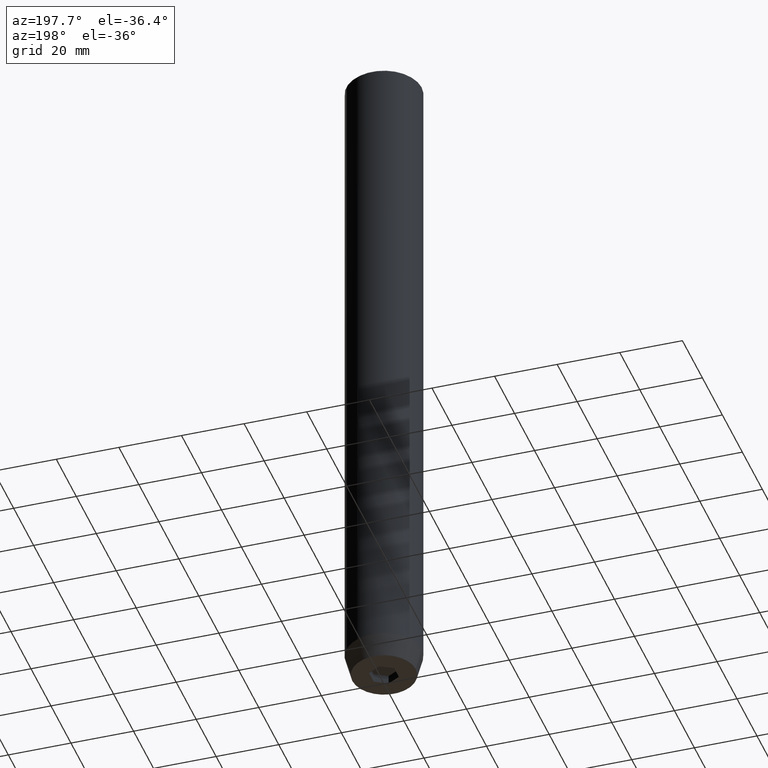
[diagram: clean part render]
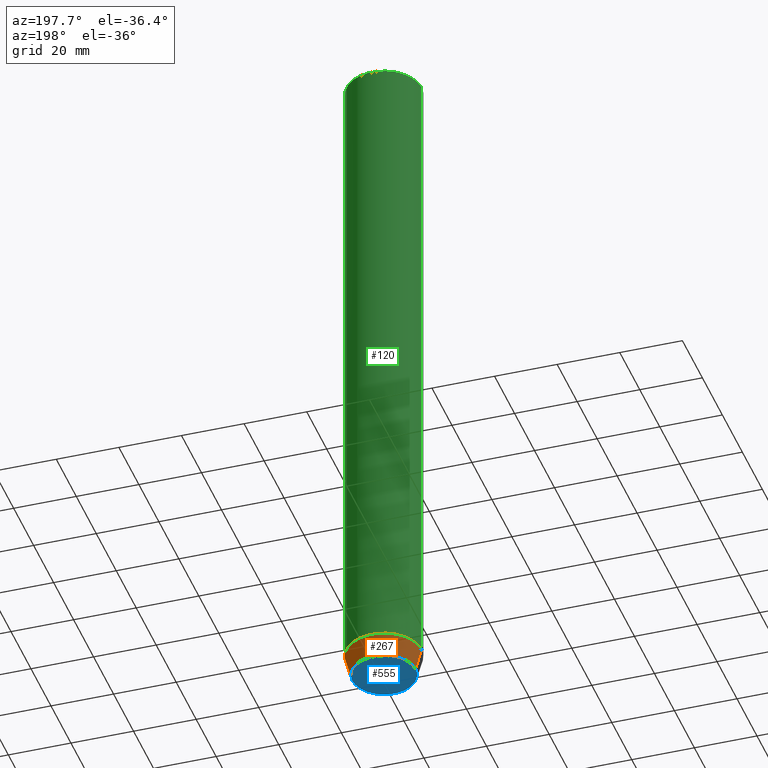
[diagram: same view with three faces highlighted in distinct colors, each labeled with its STEP entity id]
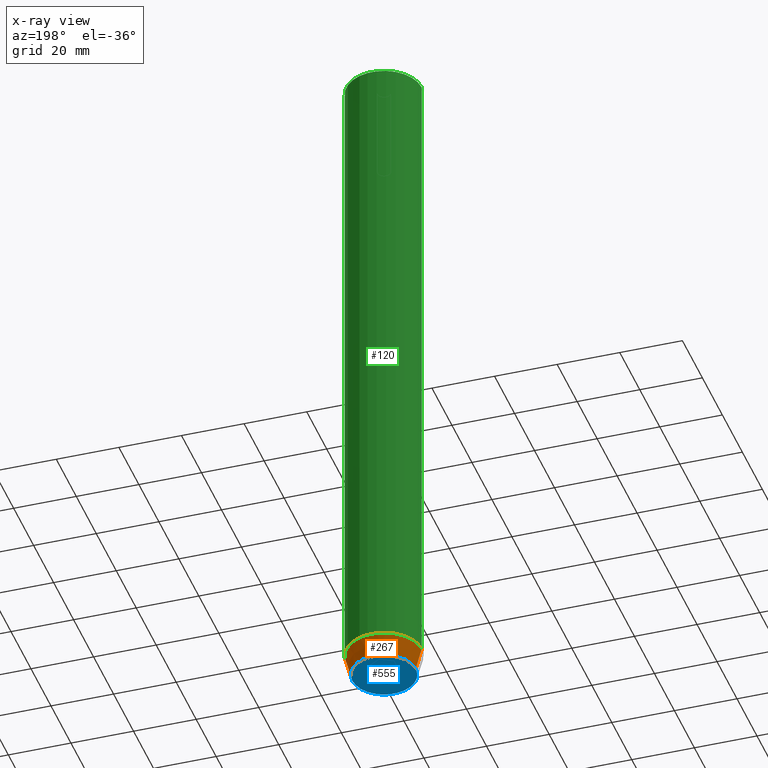
[diagram: x-ray of the same camera — body ghosted, the three highlighted faces saturated]
A machine part, auxiliary view with three faces highlighted in distinct colors.
The next image is the same camera in x-ray (body ghosted, the three faces saturated) — at least one of them is partly hidden behind the body in this view.
Their STEP definitions:

[orange] entity #267 — the highlighted conical surface has half-angle 15 deg.
#14 = ORIENTED_EDGE ( 'NONE', *, *, #531, .T. ) ;
#17 = DIRECTION ( 'NONE',  ( 0.2588190451025212391, 0.000000000000000000, 0.9659258262890680902 ) ) ;
#20 = CARTESIAN_POINT ( 'NONE',  ( 0.000000000000000000, 0.000000000000000000, -220.0000000000000000 ) ) ;
#24 = DIRECTION ( 'NONE',  ( 1.000000000000000000, 0.000000000000000000, 0.000000000000000000 ) ) ;
#28 = AXIS2_PLACEMENT_3D ( 'NONE', #20, #500, #203 ) ;
#29 = VERTEX_POINT ( 'NONE', #200 ) ;
#55 = EDGE_LOOP ( 'NONE', ( #14, #290, #175, #226 ) ) ;
#64 = VERTEX_POINT ( 'NONE', #446 ) ;
#116 = DIRECTION ( 'NONE',  ( 1.000000000000000000, 0.000000000000000000, 0.000000000000000000 ) ) ;
#148 = AXIS2_PLACEMENT_3D ( 'NONE', #496, #557, #24 ) ;
#175 = ORIENTED_EDGE ( 'NONE', *, *, #460, .F. ) ;
#200 = CARTESIAN_POINT ( 'NONE',  ( -10.12435565298212836, 1.354726066681110655E-15, -220.0000000000000000 ) ) ;
#203 = DIRECTION ( 'NONE',  ( 1.000000000000000000, 0.000000000000000000, 0.000000000000000000 ) ) ;
#216 = CARTESIAN_POINT ( 'NONE',  ( 12.00000000000000000, 0.000000000000000000, -212.9999999999999716 ) ) ;
#226 = ORIENTED_EDGE ( 'NONE', *, *, #512, .F. ) ;
#233 = CARTESIAN_POINT ( 'NONE',  ( 12.00000000000000000, 0.000000000000000000, -212.9999999999999716 ) ) ;
#267 = ADVANCED_FACE ( 'NONE', ( #345 ), #385, .T. ) ;
#290 = ORIENTED_EDGE ( 'NONE', *, *, #540, .T. ) ;
#309 = VERTEX_POINT ( 'NONE', #216 ) ;
#322 = CIRCLE ( 'NONE', #148, 12.00000000000000000 ) ;
#345 = FACE_OUTER_BOUND ( 'NONE', #55, .T. ) ;
#351 = CARTESIAN_POINT ( 'NONE',  ( 0.000000000000000000, 0.000000000000000000, -212.9999999999999716 ) ) ;
#355 = AXIS2_PLACEMENT_3D ( 'NONE', #351, #530, #116 ) ;
#379 = LINE ( 'NONE', #517, #537 ) ;
#385 = CONICAL_SURFACE ( 'NONE', #355, 12.00000000000000000, 0.2617993877991499629 ) ;
#426 = CIRCLE ( 'NONE', #28, 10.12435565298212836 ) ;
#436 = VERTEX_POINT ( 'NONE', #542 ) ;
#446 = CARTESIAN_POINT ( 'NONE',  ( -12.00000000000000000, 1.469576158976823947E-15, -212.9999999999999716 ) ) ;
#460 = EDGE_CURVE ( 'NONE', #309, #64, #322, .T. ) ;
#496 = CARTESIAN_POINT ( 'NONE',  ( 0.000000000000000000, 0.000000000000000000, -212.9999999999999716 ) ) ;
#500 = DIRECTION ( 'NONE',  ( -0.000000000000000000, -0.000000000000000000, 1.000000000000000000 ) ) ;
#512 = EDGE_CURVE ( 'NONE', #436, #309, #561, .T. ) ;
#517 = CARTESIAN_POINT ( 'NONE',  ( -12.00000000000000000, 1.469576158976823947E-15, -212.9999999999999716 ) ) ;
#521 = DIRECTION ( 'NONE',  ( -0.2588190451025212391, 3.169619151431771721E-17, 0.9659258262890680902 ) ) ;
#530 = DIRECTION ( 'NONE',  ( -0.000000000000000000, -0.000000000000000000, 1.000000000000000000 ) ) ;
#531 = EDGE_CURVE ( 'NONE', #436, #29, #426, .T. ) ;
#537 = VECTOR ( 'NONE', #521, 1000.000000000000114 ) ;
#540 = EDGE_CURVE ( 'NONE', #29, #64, #379, .T. ) ;
#542 = CARTESIAN_POINT ( 'NONE',  ( 10.12435565298212836, 0.000000000000000000, -220.0000000000000000 ) ) ;
#557 = DIRECTION ( 'NONE',  ( -0.000000000000000000, -0.000000000000000000, 1.000000000000000000 ) ) ;
#561 = LINE ( 'NONE', #233, #566 ) ;
#566 = VECTOR ( 'NONE', #17, 1000.000000000000114 ) ;

[blue] entity #555 — the highlighted planar face has unit normal (0, 0, -1).
#13 = ORIENTED_EDGE ( 'NONE', *, *, #531, .F. ) ;
#20 = CARTESIAN_POINT ( 'NONE',  ( 0.000000000000000000, 0.000000000000000000, -220.0000000000000000 ) ) ;
#28 = AXIS2_PLACEMENT_3D ( 'NONE', #20, #500, #203 ) ;
#29 = VERTEX_POINT ( 'NONE', #200 ) ;
#30 = PLANE ( 'NONE',  #300 ) ;
#39 = EDGE_LOOP ( 'NONE', ( #213, #485, #265, #359, #239, #250 ) ) ;
#42 = CARTESIAN_POINT ( 'NONE',  ( -4.336808689942017736E-16, 4.618802153517006737, -220.0000000000000000 ) ) ;
#47 = LINE ( 'NONE', #326, #403 ) ;
#51 = DIRECTION ( 'NONE',  ( 0.8660254037844385966, -0.5000000000000001110, 0.000000000000000000 ) ) ;
#52 = VECTOR ( 'NONE', #380, 1000.000000000000000 ) ;
#65 = VERTEX_POINT ( 'NONE', #330 ) ;
#67 = EDGE_CURVE ( 'NONE', #171, #65, #47, .T. ) ;
#71 = DIRECTION ( 'NONE',  ( 0.000000000000000000, 1.000000000000000000, 0.000000000000000000 ) ) ;
#73 = DIRECTION ( 'NONE',  ( -0.8660254037844384856, 0.5000000000000002220, 0.000000000000000000 ) ) ;
#81 = EDGE_CURVE ( 'NONE', #398, #171, #492, .T. ) ;
#83 = VERTEX_POINT ( 'NONE', #554 ) ;
#84 = CARTESIAN_POINT ( 'NONE',  ( -2.000000000000000000, 3.464101615137754830, -220.0000000000000000 ) ) ;
#108 = LINE ( 'NONE', #118, #235 ) ;
#113 = FACE_OUTER_BOUND ( 'NONE', #439, .T. ) ;
#118 = CARTESIAN_POINT ( 'NONE',  ( -4.000000000000000000, 0.000000000000000000, -220.0000000000000000 ) ) ;
#124 = DIRECTION ( 'NONE',  ( 1.000000000000000000, 0.000000000000000000, 0.000000000000000000 ) ) ;
#130 = DIRECTION ( 'NONE',  ( 0.000000000000000000, 0.000000000000000000, -1.000000000000000000 ) ) ;
#156 = VERTEX_POINT ( 'NONE', #553 ) ;
#166 = ORIENTED_EDGE ( 'NONE', *, *, #228, .F. ) ;
#171 = VERTEX_POINT ( 'NONE', #42 ) ;
#176 = DIRECTION ( 'NONE',  ( -0.8660254037844384856, -0.5000000000000002220, 0.000000000000000000 ) ) ;
#177 = CARTESIAN_POINT ( 'NONE',  ( 0.000000000000000000, 10.12435565298212836, -220.0000000000000000 ) ) ;
#186 = CARTESIAN_POINT ( 'NONE',  ( 2.000000000000000888, -3.464101615137754386, -220.0000000000000000 ) ) ;
#200 = CARTESIAN_POINT ( 'NONE',  ( -10.12435565298212836, 1.354726066681110655E-15, -220.0000000000000000 ) ) ;
#203 = DIRECTION ( 'NONE',  ( 1.000000000000000000, 0.000000000000000000, 0.000000000000000000 ) ) ;
#213 = ORIENTED_EDGE ( 'NONE', *, *, #81, .F. ) ;
#228 = EDGE_CURVE ( 'NONE', #29, #436, #321, .T. ) ;
#235 = VECTOR ( 'NONE', #71, 1000.000000000000000 ) ;
#239 = ORIENTED_EDGE ( 'NONE', *, *, #389, .F. ) ;
#250 = ORIENTED_EDGE ( 'NONE', *, *, #67, .F. ) ;
#260 = DIRECTION ( 'NONE',  ( -1.000000000000000000, 0.000000000000000000, -0.000000000000000000 ) ) ;
#265 = ORIENTED_EDGE ( 'NONE', *, *, #563, .F. ) ;
#269 = CARTESIAN_POINT ( 'NONE',  ( 4.000000000000000000, 0.000000000000000000, -220.0000000000000000 ) ) ;
#283 = DIRECTION ( 'NONE',  ( 0.8660254037844387076, 0.5000000000000001110, 0.000000000000000000 ) ) ;
#300 = AXIS2_PLACEMENT_3D ( 'NONE', #177, #130, #260 ) ;
#302 = LINE ( 'NONE', #269, #52 ) ;
#321 = CIRCLE ( 'NONE', #395, 10.12435565298212836 ) ;
#324 = EDGE_CURVE ( 'NONE', #156, #398, #108, .T. ) ;
#326 = CARTESIAN_POINT ( 'NONE',  ( 2.000000000000000444, 3.464101615137754386, -220.0000000000000000 ) ) ;
#330 = CARTESIAN_POINT ( 'NONE',  ( 4.000000000000000000, 2.309401076758503368, -220.0000000000000000 ) ) ;
#342 = FACE_BOUND ( 'NONE', #39, .T. ) ;
#347 = EDGE_CURVE ( 'NONE', #83, #372, #448, .T. ) ;
#356 = VECTOR ( 'NONE', #73, 1000.000000000000114 ) ;
#359 = ORIENTED_EDGE ( 'NONE', *, *, #347, .F. ) ;
#372 = VERTEX_POINT ( 'NONE', #488 ) ;
#380 = DIRECTION ( 'NONE',  ( 0.000000000000000000, -1.000000000000000000, 0.000000000000000000 ) ) ;
#388 = CARTESIAN_POINT ( 'NONE',  ( -4.000000000000000000, 2.309401076758503368, -220.0000000000000000 ) ) ;
#389 = EDGE_CURVE ( 'NONE', #65, #83, #302, .T. ) ;
#395 = AXIS2_PLACEMENT_3D ( 'NONE', #577, #533, #124 ) ;
#398 = VERTEX_POINT ( 'NONE', #388 ) ;
#403 = VECTOR ( 'NONE', #51, 1000.000000000000000 ) ;
#426 = CIRCLE ( 'NONE', #28, 10.12435565298212836 ) ;
#436 = VERTEX_POINT ( 'NONE', #542 ) ;
#439 = EDGE_LOOP ( 'NONE', ( #13, #166 ) ) ;
#448 = LINE ( 'NONE', #186, #565 ) ;
#478 = CARTESIAN_POINT ( 'NONE',  ( -2.000000000000000888, -3.464101615137754386, -220.0000000000000000 ) ) ;
#485 = ORIENTED_EDGE ( 'NONE', *, *, #324, .F. ) ;
#488 = CARTESIAN_POINT ( 'NONE',  ( 4.336808689942017736E-16, -4.618802153517006737, -220.0000000000000000 ) ) ;
#492 = LINE ( 'NONE', #84, #584 ) ;
#500 = DIRECTION ( 'NONE',  ( -0.000000000000000000, -0.000000000000000000, 1.000000000000000000 ) ) ;
#531 = EDGE_CURVE ( 'NONE', #436, #29, #426, .T. ) ;
#533 = DIRECTION ( 'NONE',  ( -0.000000000000000000, -0.000000000000000000, 1.000000000000000000 ) ) ;
#542 = CARTESIAN_POINT ( 'NONE',  ( 10.12435565298212836, 0.000000000000000000, -220.0000000000000000 ) ) ;
#553 = CARTESIAN_POINT ( 'NONE',  ( -4.000000000000000000, -2.309401076758503368, -220.0000000000000000 ) ) ;
#554 = CARTESIAN_POINT ( 'NONE',  ( 4.000000000000000000, -2.309401076758502480, -220.0000000000000000 ) ) ;
#555 = ADVANCED_FACE ( 'NONE', ( #342, #113 ), #30, .T. ) ;
#563 = EDGE_CURVE ( 'NONE', #372, #156, #575, .T. ) ;
#565 = VECTOR ( 'NONE', #176, 1000.000000000000114 ) ;
#575 = LINE ( 'NONE', #478, #356 ) ;
#577 = CARTESIAN_POINT ( 'NONE',  ( 0.000000000000000000, 0.000000000000000000, -220.0000000000000000 ) ) ;
#584 = VECTOR ( 'NONE', #283, 999.9999999999998863 ) ;

[green] entity #120 — the highlighted cylindrical surface (partial cylindrical patch) has radius 12 mm, axis along (-0, -0, 1).
#1 = CARTESIAN_POINT ( 'NONE',  ( 0.000000000000000000, 0.000000000000000000, 0.000000000000000000 ) ) ;
#24 = DIRECTION ( 'NONE',  ( 1.000000000000000000, 0.000000000000000000, 0.000000000000000000 ) ) ;
#26 = EDGE_CURVE ( 'NONE', #64, #432, #87, .T. ) ;
#31 = CARTESIAN_POINT ( 'NONE',  ( -12.00000000000000000, 1.469576158976823947E-15, -0.5000000000000056621 ) ) ;
#40 = EDGE_CURVE ( 'NONE', #432, #456, #127, .T. ) ;
#44 = CARTESIAN_POINT ( 'NONE',  ( -12.00000000000000000, 1.469576158976823947E-15, 0.000000000000000000 ) ) ;
#64 = VERTEX_POINT ( 'NONE', #446 ) ;
#66 = VECTOR ( 'NONE', #225, 1000.000000000000000 ) ;
#78 = EDGE_CURVE ( 'NONE', #309, #456, #417, .T. ) ;
#87 = LINE ( 'NONE', #44, #66 ) ;
#100 = CARTESIAN_POINT ( 'NONE',  ( 12.00000000000000000, 0.000000000000000000, -0.5000000000000056621 ) ) ;
#120 = ADVANCED_FACE ( 'NONE', ( #484 ), #229, .T. ) ;
#127 = CIRCLE ( 'NONE', #546, 12.00000000000000000 ) ;
#133 = CARTESIAN_POINT ( 'NONE',  ( 0.000000000000000000, 0.000000000000000000, -0.5000000000000056621 ) ) ;
#148 = AXIS2_PLACEMENT_3D ( 'NONE', #496, #557, #24 ) ;
#183 = DIRECTION ( 'NONE',  ( -0.000000000000000000, -0.000000000000000000, 1.000000000000000000 ) ) ;
#195 = DIRECTION ( 'NONE',  ( 1.000000000000000000, 0.000000000000000000, 0.000000000000000000 ) ) ;
#216 = CARTESIAN_POINT ( 'NONE',  ( 12.00000000000000000, 0.000000000000000000, -212.9999999999999716 ) ) ;
#225 = DIRECTION ( 'NONE',  ( -0.000000000000000000, -0.000000000000000000, 1.000000000000000000 ) ) ;
#229 = CYLINDRICAL_SURFACE ( 'NONE', #514, 12.00000000000000000 ) ;
#301 = ORIENTED_EDGE ( 'NONE', *, *, #40, .T. ) ;
#309 = VERTEX_POINT ( 'NONE', #216 ) ;
#320 = DIRECTION ( 'NONE',  ( -0.000000000000000000, -0.000000000000000000, 1.000000000000000000 ) ) ;
#322 = CIRCLE ( 'NONE', #148, 12.00000000000000000 ) ;
#358 = EDGE_LOOP ( 'NONE', ( #519, #463, #301, #383 ) ) ;
#370 = CARTESIAN_POINT ( 'NONE',  ( 12.00000000000000000, 0.000000000000000000, 0.000000000000000000 ) ) ;
#383 = ORIENTED_EDGE ( 'NONE', *, *, #78, .F. ) ;
#417 = LINE ( 'NONE', #370, #527 ) ;
#432 = VERTEX_POINT ( 'NONE', #31 ) ;
#446 = CARTESIAN_POINT ( 'NONE',  ( -12.00000000000000000, 1.469576158976823947E-15, -212.9999999999999716 ) ) ;
#456 = VERTEX_POINT ( 'NONE', #100 ) ;
#460 = EDGE_CURVE ( 'NONE', #309, #64, #322, .T. ) ;
#463 = ORIENTED_EDGE ( 'NONE', *, *, #26, .T. ) ;
#484 = FACE_OUTER_BOUND ( 'NONE', #358, .T. ) ;
#496 = CARTESIAN_POINT ( 'NONE',  ( 0.000000000000000000, 0.000000000000000000, -212.9999999999999716 ) ) ;
#503 = DIRECTION ( 'NONE',  ( 0.000000000000000000, 0.000000000000000000, -1.000000000000000000 ) ) ;
#514 = AXIS2_PLACEMENT_3D ( 'NONE', #1, #183, #583 ) ;
#519 = ORIENTED_EDGE ( 'NONE', *, *, #460, .T. ) ;
#527 = VECTOR ( 'NONE', #320, 1000.000000000000000 ) ;
#546 = AXIS2_PLACEMENT_3D ( 'NONE', #133, #503, #195 ) ;
#557 = DIRECTION ( 'NONE',  ( -0.000000000000000000, -0.000000000000000000, 1.000000000000000000 ) ) ;
#583 = DIRECTION ( 'NONE',  ( 1.000000000000000000, 0.000000000000000000, 0.000000000000000000 ) ) ;